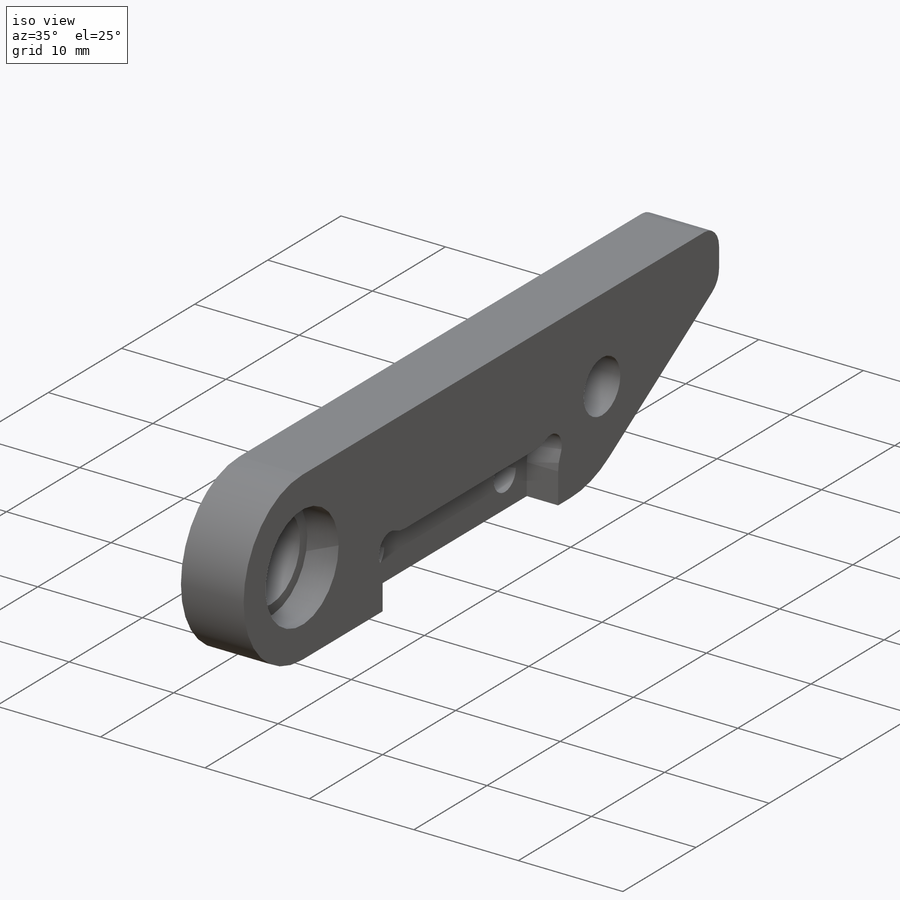
[diagram: iso view]
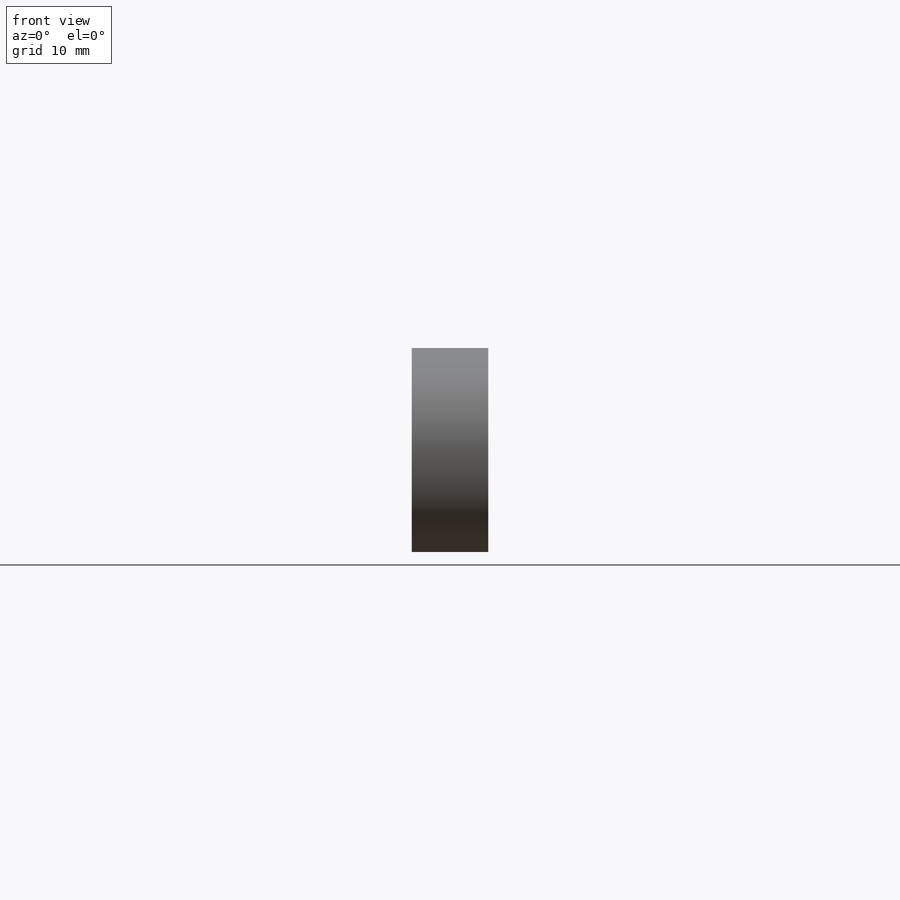
[diagram: front view]
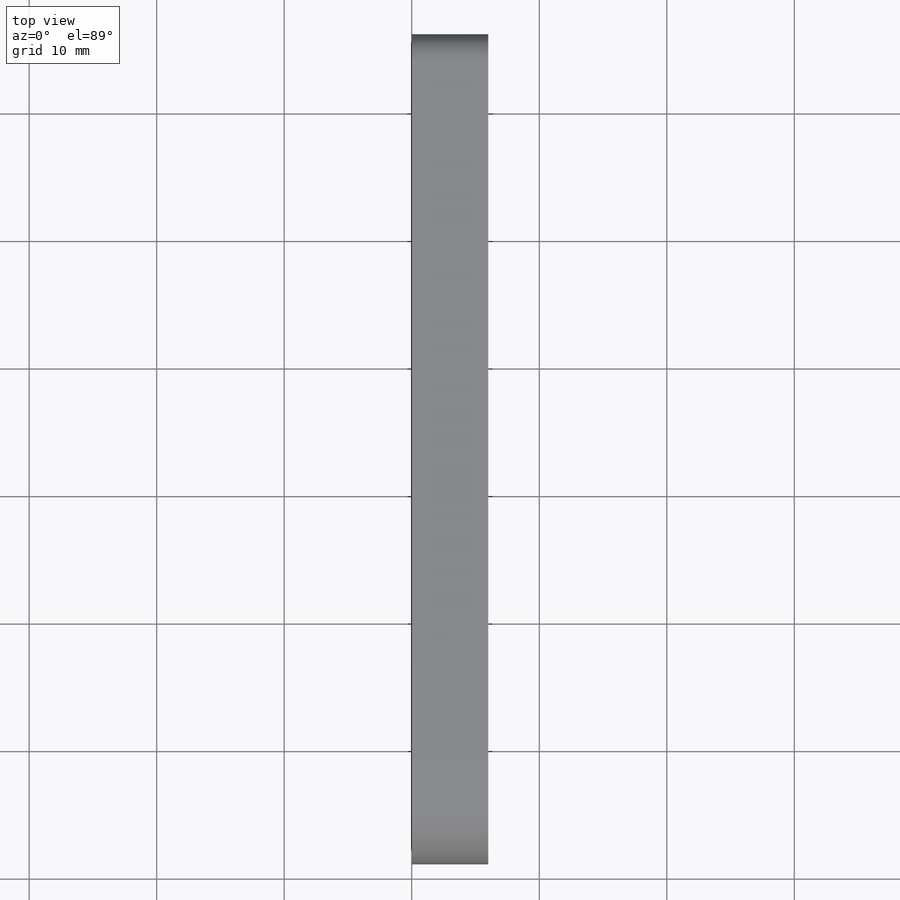
[diagram: top view]
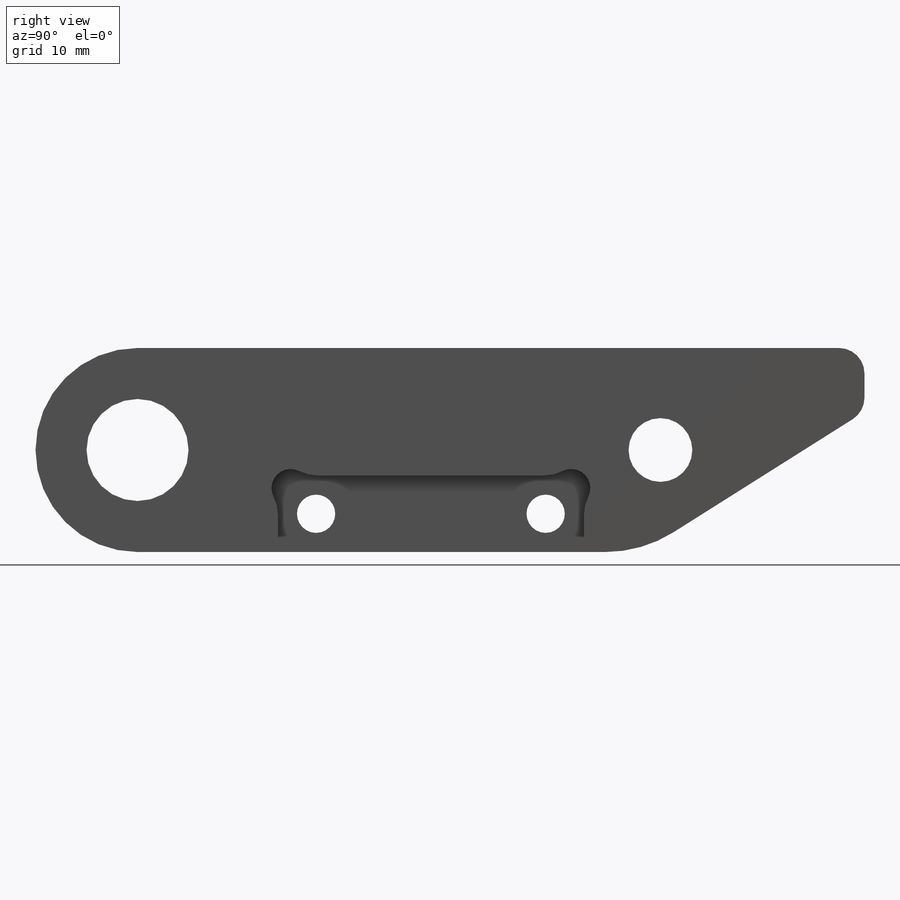
[diagram: right view]
SOLIDWORKS PART (.sldprt)
format: sldprt  version: not decoded by parser v0  size: 345,088 bytes
history: native  units: mm
features: sketch x5, cut_extrude x4, fillet x3, material x1, extrude x1 (+11 scaffold rows collapsed)
feature tree (25):
  scaffold x11  (default folders/planes/origin — collapsed)
  material  "1060 Alloy"
  sketch  "Sketch27"  dims[c1.D9=8.0mm c1.D10=5.0mm c1.D11=12.0mm c1.D12=8.0mm c1.D13=8.0mm c1.D14=15.0mm c1.D15=10.0mm c1.D6=20.0mm c2.D14=22.0mm c2.D6=~29.532684mm c3.D14=24.0mm c3.D15=2.0mm c3.D16=11.2mm c3.D9=6.0mm c3.D11=24.0mm c4.D9=12.0mm c4.D1=60.0mm c4.D2=58.0mm c4.D3=42.0mm c4.D4=9.0mm c4.D5=25.0mm c4.D6=37.0mm c4.D7=42.0mm c4.D8=20.0mm c4.D16=3.0mm c4.D17=14.0mm c4.D15=17.0mm c5.D5=50.0mm c5.D6=~20.239765mm c5.D8=24.0mm c5.D11=20.0mm c5.D14=1.0mm c6.D6=1.0mm c6.D17=3.0mm c6.D8=12.0mm c7.D17=25.0mm c7.D6=25.0mm c7.D11=8.0mm c8.D6=18.0mm c8.D11=22.0mm c9.D6=16.0mm c9.D14=5.0mm c9.D11=~37.234381mm]
  extrude  "Boss-Extrude1"  Depth=6mm
  sketch  "Sketch33"  dims[D1=9.98mm]
  cut_extrude  "Cut-Extrude2"  Depth=3mm
  sketch  "Sketch34"  dims[D1=24.0mm D2=6.0mm D3=6.0mm]
  cut_extrude  "Cut-Extrude3"  Depth=3mm
  sketch  "Sketch35"  dims[D1=3.0mm D2=1.0mm D3=1.0mm D4=1.0mm D5=1.0mm]
  cut_extrude  "Cut-Extrude4"  [1 undecoded]
  fillet  "Fillet1"  Radius=3mm
  sketch  "Sketch36"  dims[D1=3.0mm D2=3.0mm D3=3.0mm D4=3.0mm D5=3.0mm]
  cut_extrude  "Cut-Extrude5"  [1 undecoded]
  fillet  "Fillet3"  Radius=2mm
  fillet  "Fillet4"  Radius=10mm
decode coverage: 11 of 13 modeling features carry decoded parameters
note: ~ marks probable driven/reference dimensions
note: 2 parameter values undecoded
note: suppression state not decoded; provenance and decode notes live in map.json
